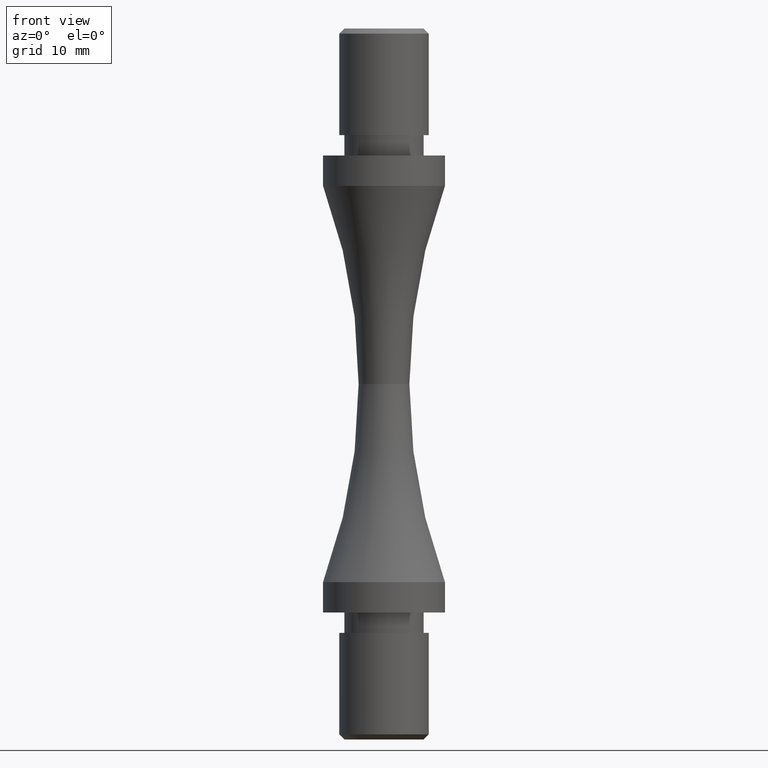
[diagram: clean part render]
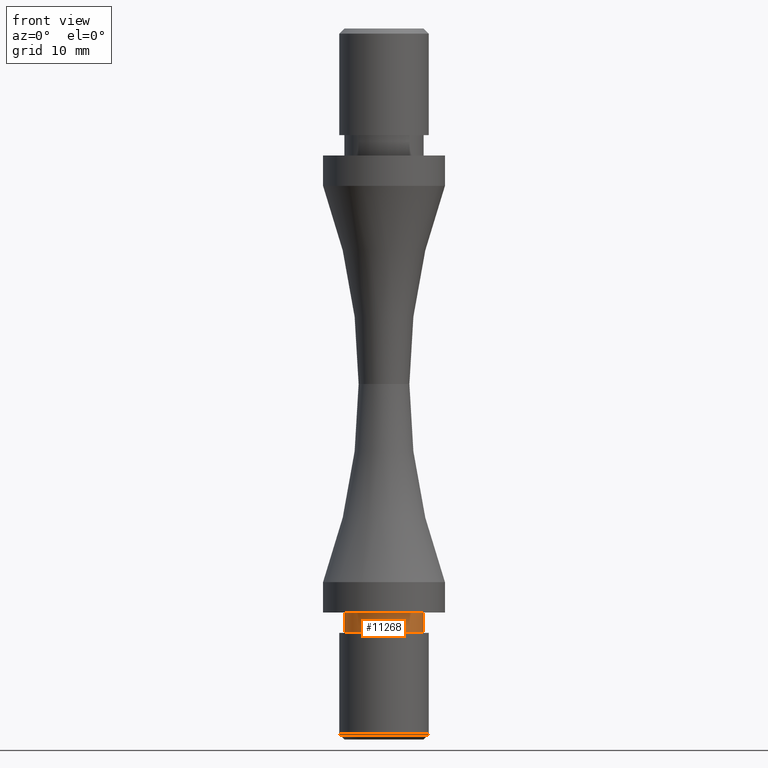
[diagram: same view with one face highlighted and labeled with its STEP entity id]
A machine part, front view. The second image highlights one B-rep face of the part: STEP entity #11268.
In plain terms, the highlighted cylindrical surface (partial cylindrical patch) has radius 3.9 mm, axis along (-0, -0, -1).
Its self-contained STEP definition (entity closure, byte-faithful):
#128 = CYLINDRICAL_SURFACE ( 'NONE', #3649, 3.900000000000192646 ) ;
#282 = CARTESIAN_POINT ( 'NONE',  ( 3.900000000000184652, -5.157417952517285589E-15, -22.49999999999996447 ) ) ;
#1931 = VECTOR ( 'NONE', #4715, 1000.000000000000000 ) ;
#3081 = EDGE_CURVE ( 'NONE', #9824, #7946, #10973, .T. ) ;
#3559 = CARTESIAN_POINT ( 'NONE',  ( 0.000000000000000000, -5.635030204184775702E-15, -22.49999999999996447 ) ) ;
#3649 = AXIS2_PLACEMENT_3D ( 'NONE', #8693, #7504, #10125 ) ;
#4715 = DIRECTION ( 'NONE',  ( -0.000000000000000000, -0.000000000000000000, -1.000000000000000000 ) ) ;
#4894 = ORIENTED_EDGE ( 'NONE', *, *, #8784, .F. ) ;
#5174 = VERTEX_POINT ( 'NONE', #11728 ) ;
#5570 = LINE ( 'NONE', #14219, #14714 ) ;
#6098 = CARTESIAN_POINT ( 'NONE',  ( 3.900000000000201528, -5.157417952517284011E-15, -24.49999999999996447 ) ) ;
#6512 = ORIENTED_EDGE ( 'NONE', *, *, #8587, .F. ) ;
#7504 = DIRECTION ( 'NONE',  ( -0.000000000000000000, -0.000000000000000000, -1.000000000000000000 ) ) ;
#7946 = VERTEX_POINT ( 'NONE', #8427 ) ;
#7985 = CARTESIAN_POINT ( 'NONE',  ( 3.900000000000192646, -5.157417952517284800E-15, -22.50000000000000000 ) ) ;
#8005 = AXIS2_PLACEMENT_3D ( 'NONE', #14727, #12283, #13619 ) ;
#8124 = ORIENTED_EDGE ( 'NONE', *, *, #3081, .T. ) ;
#8214 = LINE ( 'NONE', #7985, #1931 ) ;
#8249 = DIRECTION ( 'NONE',  ( -0.000000000000000000, -0.000000000000000000, -1.000000000000000000 ) ) ;
#8427 = CARTESIAN_POINT ( 'NONE',  ( -3.900000000000184652, -5.635030204184775702E-15, -22.49999999999996447 ) ) ;
#8587 = EDGE_CURVE ( 'NONE', #9824, #9720, #8214, .T. ) ;
#8693 = CARTESIAN_POINT ( 'NONE',  ( 0.000000000000000000, -5.635030204184775702E-15, -22.50000000000000000 ) ) ;
#8702 = ORIENTED_EDGE ( 'NONE', *, *, #15279, .T. ) ;
#8742 = EDGE_LOOP ( 'NONE', ( #6512, #8124, #8702, #4894 ) ) ;
#8784 = EDGE_CURVE ( 'NONE', #9720, #5174, #13546, .T. ) ;
#9643 = FACE_OUTER_BOUND ( 'NONE', #8742, .T. ) ;
#9720 = VERTEX_POINT ( 'NONE', #6098 ) ;
#9824 = VERTEX_POINT ( 'NONE', #282 ) ;
#10125 = DIRECTION ( 'NONE',  ( -1.000000000000000000, 0.000000000000000000, 0.000000000000000000 ) ) ;
#10973 = CIRCLE ( 'NONE', #13008, 3.900000000000184652 ) ;
#11268 = ADVANCED_FACE ( 'NONE', ( #9643 ), #128, .T. ) ;
#11728 = CARTESIAN_POINT ( 'NONE',  ( -3.900000000000201084, -5.635030204184775702E-15, -24.49999999999996447 ) ) ;
#12283 = DIRECTION ( 'NONE',  ( -0.000000000000000000, -0.000000000000000000, -1.000000000000000000 ) ) ;
#13008 = AXIS2_PLACEMENT_3D ( 'NONE', #3559, #13274, #13124 ) ;
#13124 = DIRECTION ( 'NONE',  ( -1.000000000000000000, 0.000000000000000000, 0.000000000000000000 ) ) ;
#13274 = DIRECTION ( 'NONE',  ( -0.000000000000000000, -0.000000000000000000, -1.000000000000000000 ) ) ;
#13546 = CIRCLE ( 'NONE', #8005, 3.900000000000201084 ) ;
#13619 = DIRECTION ( 'NONE',  ( -1.000000000000000000, 0.000000000000000000, 0.000000000000000000 ) ) ;
#14219 = CARTESIAN_POINT ( 'NONE',  ( -3.900000000000192646, -5.635030204184775702E-15, -22.50000000000000000 ) ) ;
#14714 = VECTOR ( 'NONE', #8249, 1000.000000000000000 ) ;
#14727 = CARTESIAN_POINT ( 'NONE',  ( 0.000000000000000000, -5.635030204184775702E-15, -24.49999999999996447 ) ) ;
#15279 = EDGE_CURVE ( 'NONE', #7946, #5174, #5570, .T. ) ;